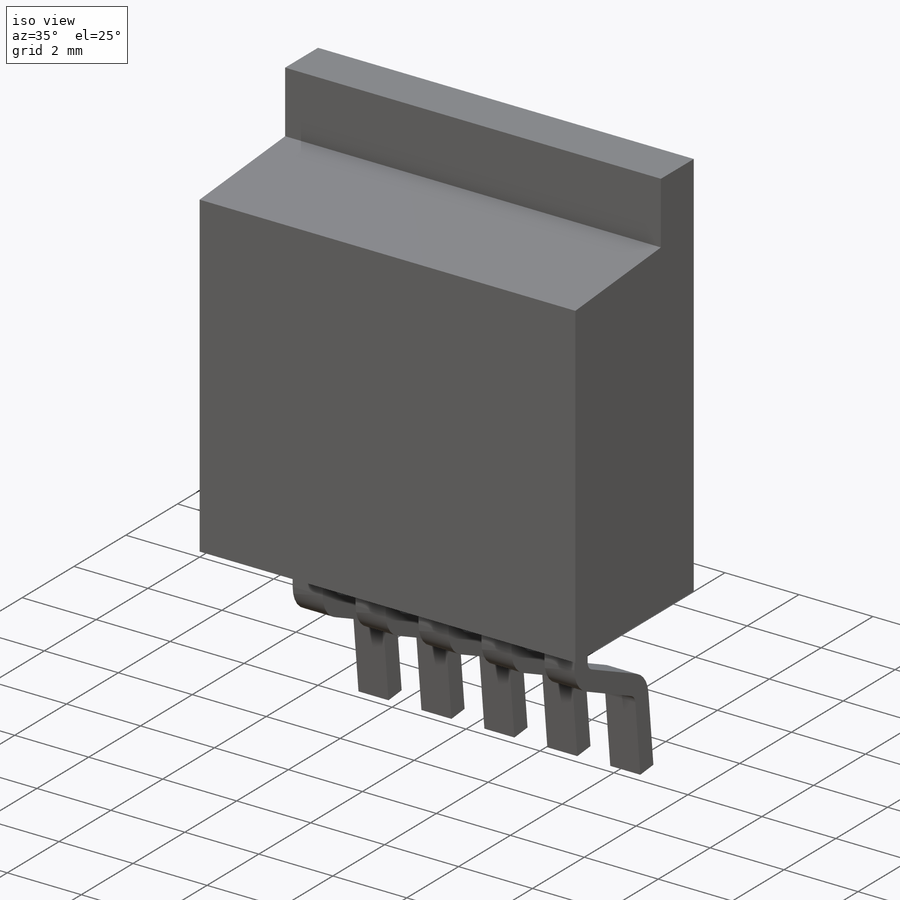
[diagram: iso view]
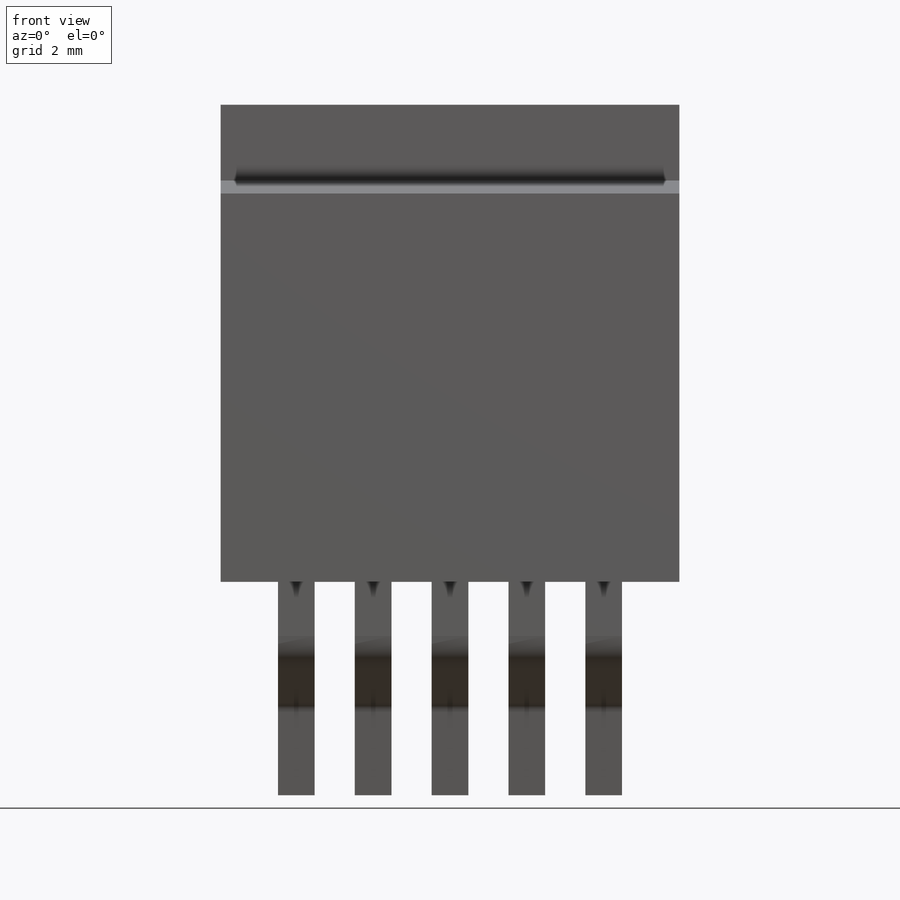
[diagram: front view]
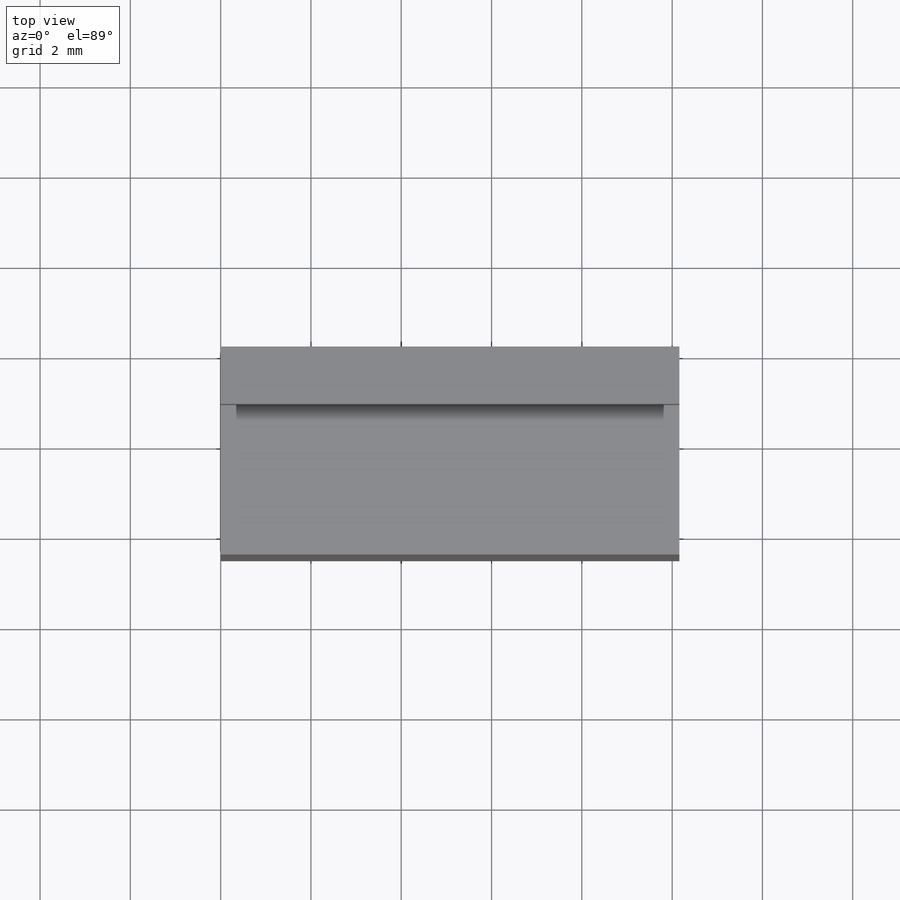
[diagram: top view]
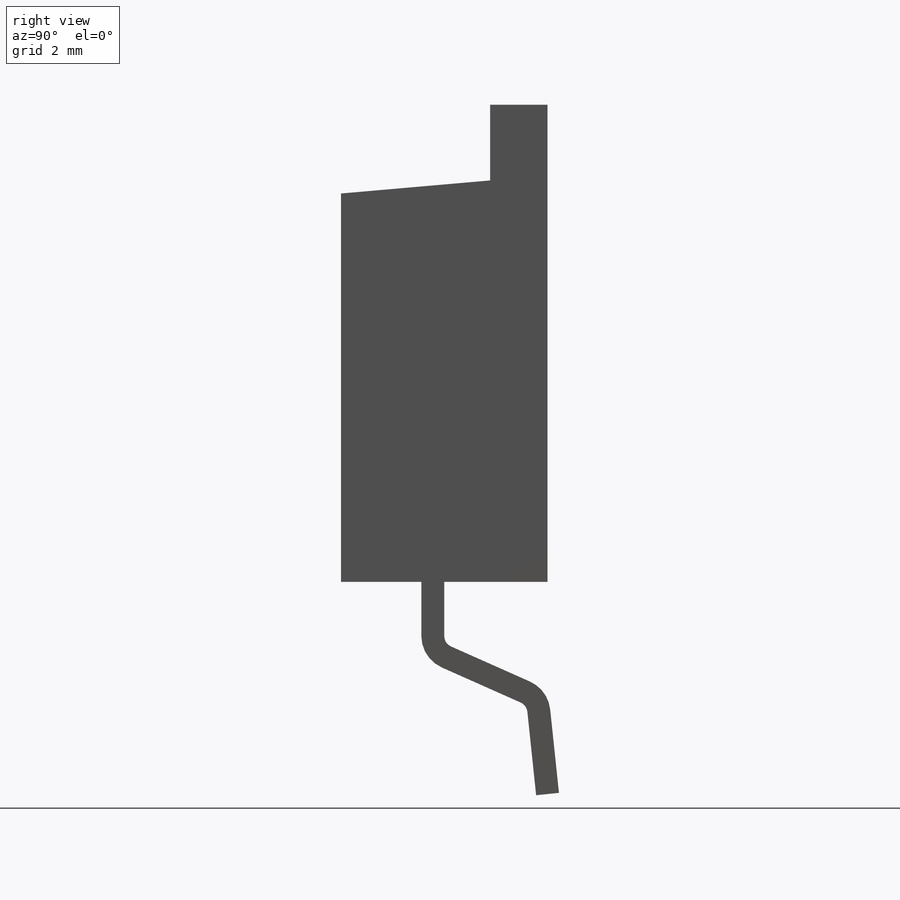
[diagram: right view]
SOLIDWORKS PART (.sldprt)
format: sldprt  version: not decoded by parser v0  size: 195,072 bytes
history: native  units: mm
features: sketch x3, extrude x2, material x1, plane x1, pattern_linear x1 (+13 scaffold rows collapsed)
feature tree (21):
  scaffold x13  (default folders/planes/origin — collapsed)
  material  "Material <not specified>"
  sketch  "Sketch1"  dims[D1=10.5664mm D2=10.16mm]
  extrude  "Boss-Extrude1"  Depth=1.27mm
  sketch  "Sketch2"  dims[D1=8.89mm]
  extrude  "Boss-Extrude2"  Depth=3.302mm
  plane  "Plane1"  Offset=1.6764mm
  sketch  "Sketch3"  dims[c1.D1=2.286mm c1.D2=15.24mm c1.D3=~2.299717mm c2.D3=6.0deg c2.D4=0.254mm c2.D1=0.8128mm c2.D5=0.508mm c2.D6=1.0mm c2.D7=0.254mm]
  pattern_linear  "LPattern1"  Count1=5 Count2=1 Spacing1=1.7018mm Spacing2=2.54mm
decode coverage: 6 of 6 modeling features carry decoded parameters
note: ~ marks probable driven/reference dimensions
note: suppression state not decoded; provenance and decode notes live in map.json
